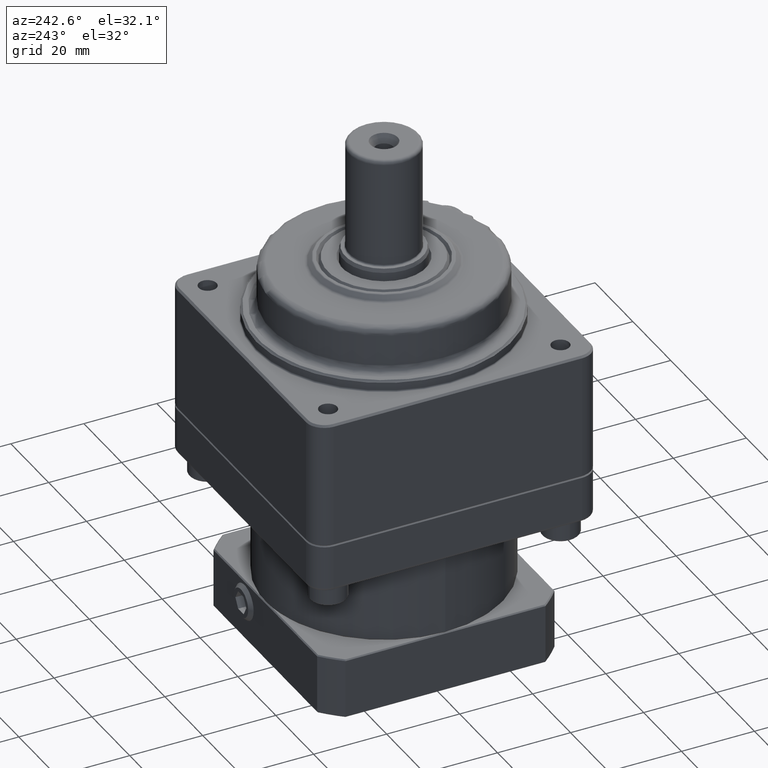
[diagram: clean part render]
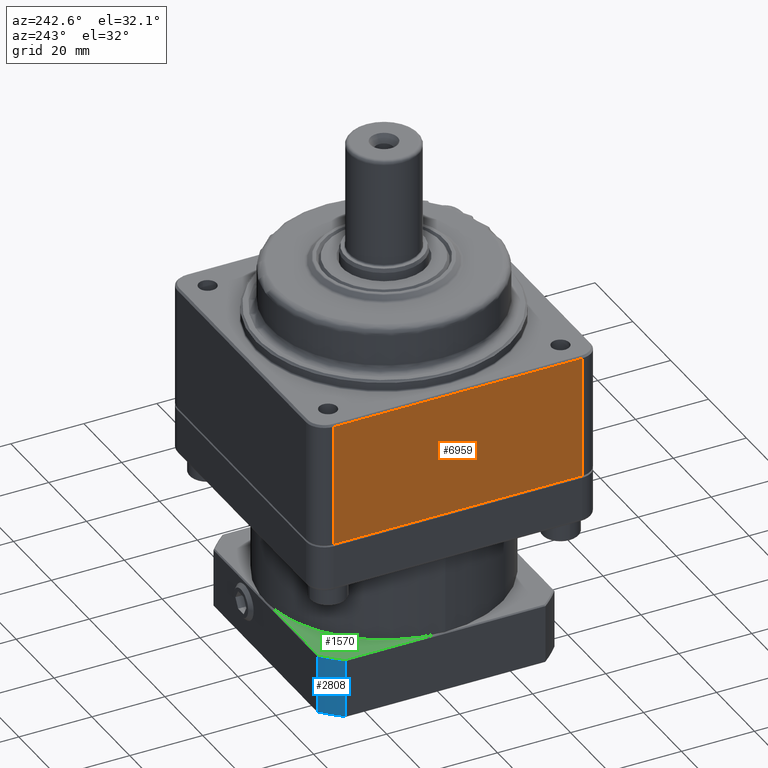
[diagram: same view with three faces highlighted in distinct colors, each labeled with its STEP entity id]
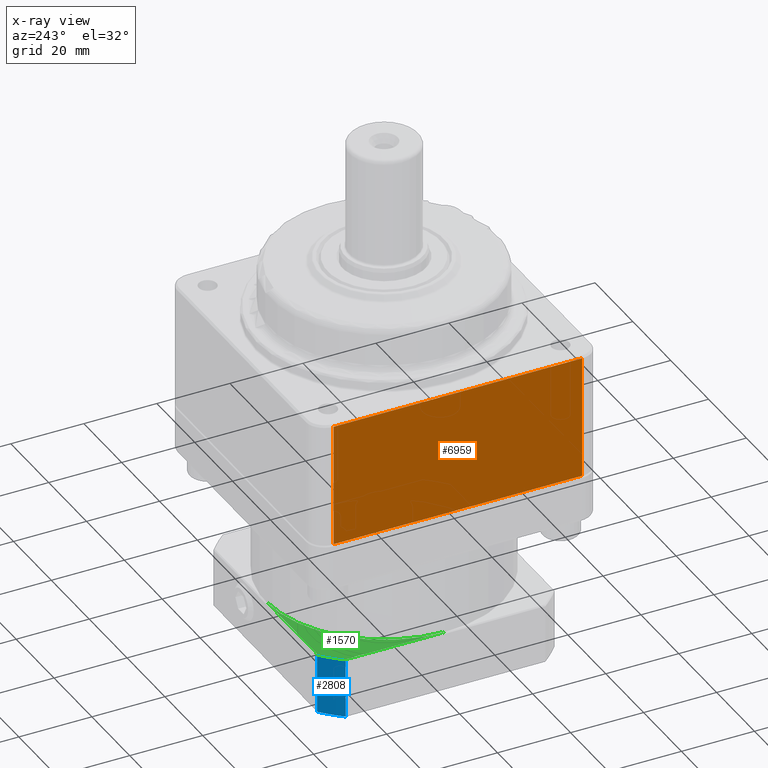
[diagram: x-ray of the same camera — body ghosted, the three highlighted faces saturated]
A machine part, auxiliary view with three faces highlighted in distinct colors.
The next image is the same camera in x-ray (body ghosted, the three faces saturated) — at least one of them is partly hidden behind the body in this view.
Their STEP definitions:

[orange] entity #6959 — the highlighted planar face has unit normal (-1, 0, 0).
#6842=CARTESIAN_POINT('',(-39.0,-34.0,34.0));
#6843=VERTEX_POINT('',#6842);
#6867=CARTESIAN_POINT('',(-39.0,34.0,34.0));
#6868=VERTEX_POINT('',#6867);
#6875=CARTESIAN_POINT('',(-39.0,34.000000000000007,34.0));
#6876=DIRECTION('',(0.0,-1.0,0.0));
#6877=VECTOR('',#6876,68.0);
#6878=LINE('',#6875,#6877);
#6879=EDGE_CURVE('',#6868,#6843,#6878,.T.);
#6910=CARTESIAN_POINT('',(-39.0,-34.0,0.3));
#6911=VERTEX_POINT('',#6910);
#6912=CARTESIAN_POINT('',(-39.0,-34.0,0.3));
#6913=DIRECTION('',(0.0,0.0,1.0));
#6914=VECTOR('',#6913,33.700000000000003);
#6915=LINE('',#6912,#6914);
#6916=EDGE_CURVE('',#6911,#6843,#6915,.T.);
#6936=CARTESIAN_POINT('',(-39.0,-34.0,0.0));
#6937=DIRECTION('',(-1.0,0.0,0.0));
#6938=DIRECTION('',(0.0,0.0,1.0));
#6939=AXIS2_PLACEMENT_3D('',#6936,#6937,#6938);
#6940=PLANE('',#6939);
#6941=ORIENTED_EDGE('',*,*,#6879,.F.);
#6942=CARTESIAN_POINT('',(-39.0,34.0,0.3));
#6943=VERTEX_POINT('',#6942);
#6944=CARTESIAN_POINT('',(-39.0,34.0,0.3));
#6945=DIRECTION('',(0.0,0.0,1.0));
#6946=VECTOR('',#6945,33.700000000000003);
#6947=LINE('',#6944,#6946);
#6948=EDGE_CURVE('',#6943,#6868,#6947,.T.);
#6949=ORIENTED_EDGE('',*,*,#6948,.F.);
#6950=CARTESIAN_POINT('',(-39.0,-34.0,0.3));
#6951=DIRECTION('',(0.0,1.0,0.0));
#6952=VECTOR('',#6951,68.0);
#6953=LINE('',#6950,#6952);
#6954=EDGE_CURVE('',#6911,#6943,#6953,.T.);
#6955=ORIENTED_EDGE('',*,*,#6954,.F.);
#6956=ORIENTED_EDGE('',*,*,#6916,.T.);
#6957=EDGE_LOOP('',(#6941,#6949,#6955,#6956));
#6958=FACE_OUTER_BOUND('',#6957,.T.);
#6959=ADVANCED_FACE('',(#6958),#6940,.T.);

[blue] entity #2808 — the highlighted cylindrical surface (partial cylindrical patch) has radius 42.5 mm, axis along (0, -0, 1).
#2276=CARTESIAN_POINT('',(-32.5,27.386127875258307,-38.799999999999997));
#2277=VERTEX_POINT('',#2276);
#2309=CARTESIAN_POINT('',(-27.386127875258307,32.5,-38.799999999999997));
#2310=VERTEX_POINT('',#2309);
#2318=CARTESIAN_POINT('',(0.0,3.267934E-031,-38.799999999999997));
#2319=DIRECTION('',(0.0,0.0,1.0));
#2320=DIRECTION('',(-1.0,0.0,0.0));
#2321=AXIS2_PLACEMENT_3D('',#2318,#2319,#2320);
#2322=CIRCLE('',#2321,42.5);
#2323=EDGE_CURVE('',#2310,#2277,#2322,.T.);
#2564=CARTESIAN_POINT('',(-32.5,27.386127875258307,-54.699999999999996));
#2565=VERTEX_POINT('',#2564);
#2566=CARTESIAN_POINT('',(-32.5,27.386127875258307,-54.700000000000003));
#2567=DIRECTION('',(0.0,0.0,1.0));
#2568=VECTOR('',#2567,15.900000000000006);
#2569=LINE('',#2566,#2568);
#2570=EDGE_CURVE('',#2565,#2277,#2569,.T.);
#2717=CARTESIAN_POINT('',(-27.386127875258307,32.5,-54.699999999999996));
#2718=VERTEX_POINT('',#2717);
#2743=CARTESIAN_POINT('',(0.0,4.607113E-031,-54.699999999999996));
#2744=DIRECTION('',(0.0,0.0,-1.0));
#2745=DIRECTION('',(-1.0,0.0,0.0));
#2746=AXIS2_PLACEMENT_3D('',#2743,#2744,#2745);
#2747=CIRCLE('',#2746,42.5);
#2748=EDGE_CURVE('',#2565,#2718,#2747,.T.);
#2784=CARTESIAN_POINT('',(-27.386127875258307,32.5,-54.700000000000003));
#2785=DIRECTION('',(0.0,0.0,1.0));
#2786=VECTOR('',#2785,15.900000000000006);
#2787=LINE('',#2784,#2786);
#2788=EDGE_CURVE('',#2718,#2310,#2787,.T.);
#2797=CARTESIAN_POINT('',(0.0,4.632381E-031,-55.0));
#2798=DIRECTION('',(0.0,-8.422510E-033,1.0));
#2799=DIRECTION('',(1.0,0.0,0.0));
#2800=AXIS2_PLACEMENT_3D('',#2797,#2798,#2799);
#2801=CYLINDRICAL_SURFACE('',#2800,42.5);
#2802=ORIENTED_EDGE('',*,*,#2323,.F.);
#2803=ORIENTED_EDGE('',*,*,#2788,.F.);
#2804=ORIENTED_EDGE('',*,*,#2748,.F.);
#2805=ORIENTED_EDGE('',*,*,#2570,.T.);
#2806=EDGE_LOOP('',(#2802,#2803,#2804,#2805));
#2807=FACE_OUTER_BOUND('',#2806,.T.);
#2808=ADVANCED_FACE('',(#2807),#2801,.T.);

[green] entity #1570 — the highlighted planar face has unit normal (0, 0, 1).
#1529=CARTESIAN_POINT('',(-4.163336E-016,-4.163336E-016,-38.5));
#1530=DIRECTION('',(0.0,0.0,1.0));
#1531=DIRECTION('',(1.0,0.0,0.0));
#1532=AXIS2_PLACEMENT_3D('',#1529,#1530,#1531);
#1533=PLANE('',#1532);
#1534=CARTESIAN_POINT('',(0.0,32.200000000000003,-38.5));
#1535=VERTEX_POINT('',#1534);
#1536=CARTESIAN_POINT('',(-32.200000000000003,-3.943363E-015,-38.5));
#1537=VERTEX_POINT('',#1536);
#1538=CARTESIAN_POINT('',(0.0,3.242666E-031,-38.5));
#1539=DIRECTION('',(0.0,0.0,1.0));
#1540=DIRECTION('',(1.0,0.0,0.0));
#1541=AXIS2_PLACEMENT_3D('',#1538,#1539,#1540);
#1542=CIRCLE('',#1541,32.200000000000003);
#1543=EDGE_CURVE('',#1535,#1537,#1542,.T.);
#1544=ORIENTED_EDGE('',*,*,#1543,.F.);
#1545=CARTESIAN_POINT('',(-27.2763633939717,32.200000000000003,-38.5));
#1546=VERTEX_POINT('',#1545);
#1547=CARTESIAN_POINT('',(-27.2763633939717,32.200000000000003,-38.5));
#1548=DIRECTION('',(1.0,0.0,0.0));
#1549=VECTOR('',#1548,27.2763633939717);
#1550=LINE('',#1547,#1549);
#1551=EDGE_CURVE('',#1546,#1535,#1550,.T.);
#1552=ORIENTED_EDGE('',*,*,#1551,.F.);
#1553=CARTESIAN_POINT('',(-32.200000000000003,27.2763633939717,-38.5));
#1554=VERTEX_POINT('',#1553);
#1555=CARTESIAN_POINT('',(0.0,3.242666E-031,-38.5));
#1556=DIRECTION('',(0.0,0.0,-1.0));
#1557=DIRECTION('',(-1.0,0.0,0.0));
#1558=AXIS2_PLACEMENT_3D('',#1555,#1556,#1557);
#1559=CIRCLE('',#1558,42.199999999999996);
#1560=EDGE_CURVE('',#1554,#1546,#1559,.T.);
#1561=ORIENTED_EDGE('',*,*,#1560,.F.);
#1562=CARTESIAN_POINT('',(-32.200000000000003,-5.329071E-015,-38.5));
#1563=DIRECTION('',(0.0,1.0,0.0));
#1564=VECTOR('',#1563,27.2763633939717);
#1565=LINE('',#1562,#1564);
#1566=EDGE_CURVE('',#1537,#1554,#1565,.T.);
#1567=ORIENTED_EDGE('',*,*,#1566,.F.);
#1568=EDGE_LOOP('',(#1544,#1552,#1561,#1567));
#1569=FACE_OUTER_BOUND('',#1568,.T.);
#1570=ADVANCED_FACE('',(#1569),#1533,.T.);